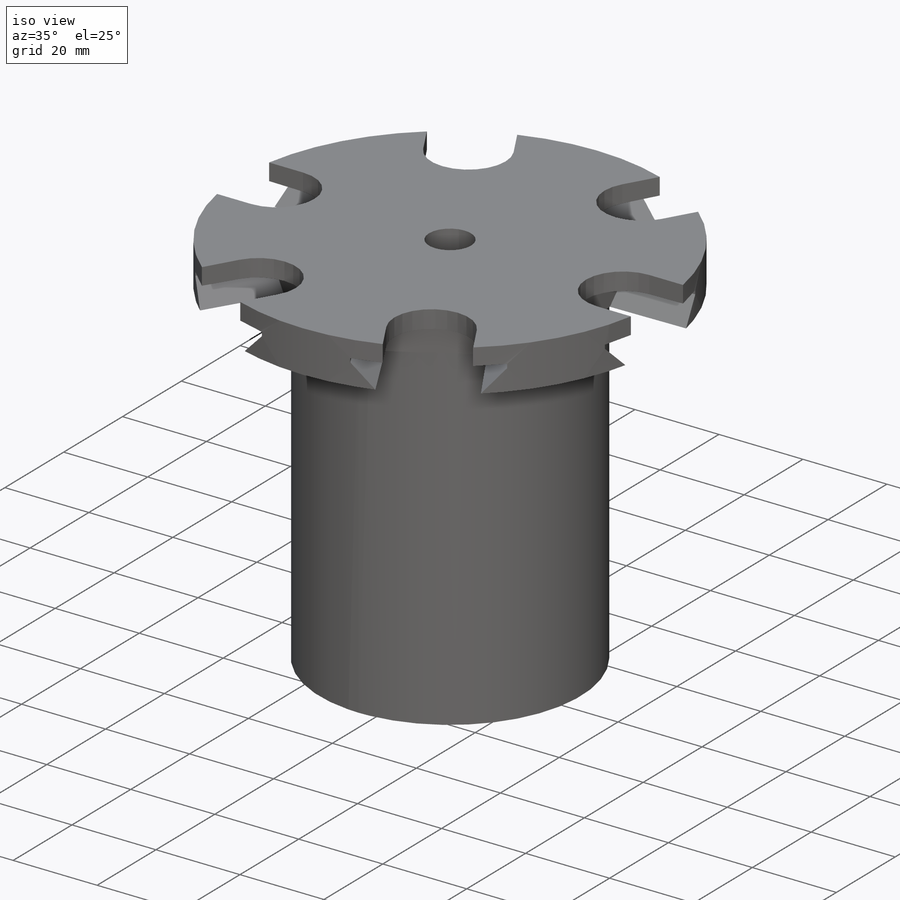
[diagram: iso view]
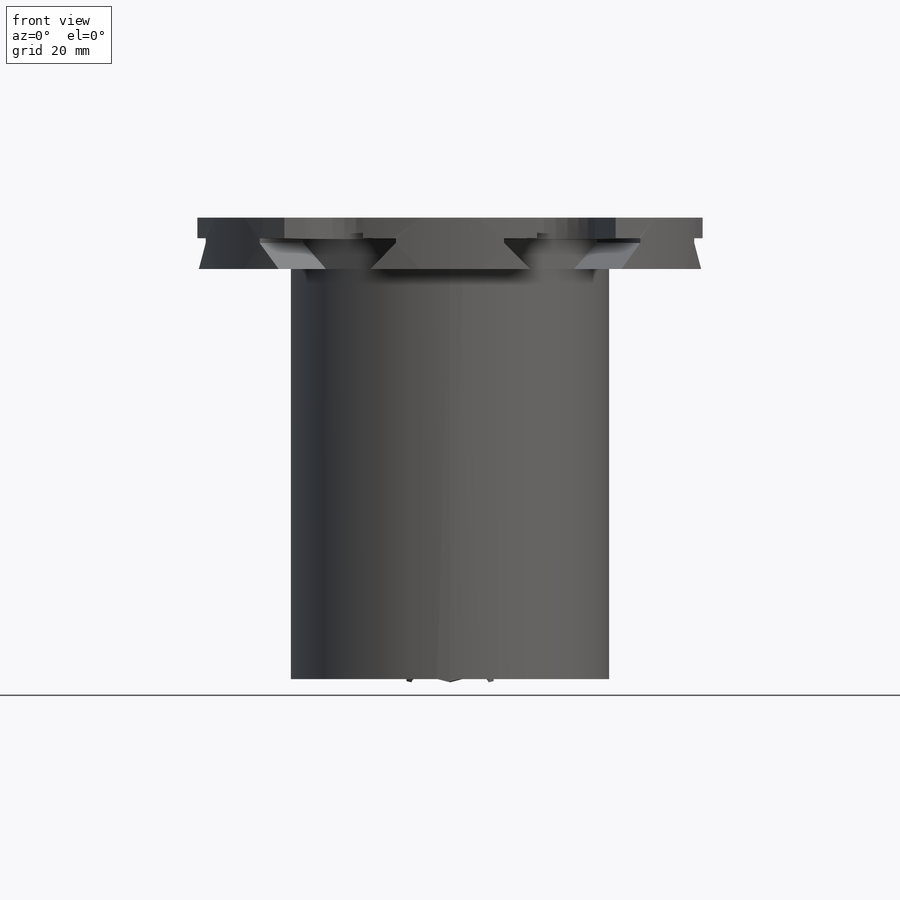
[diagram: front view]
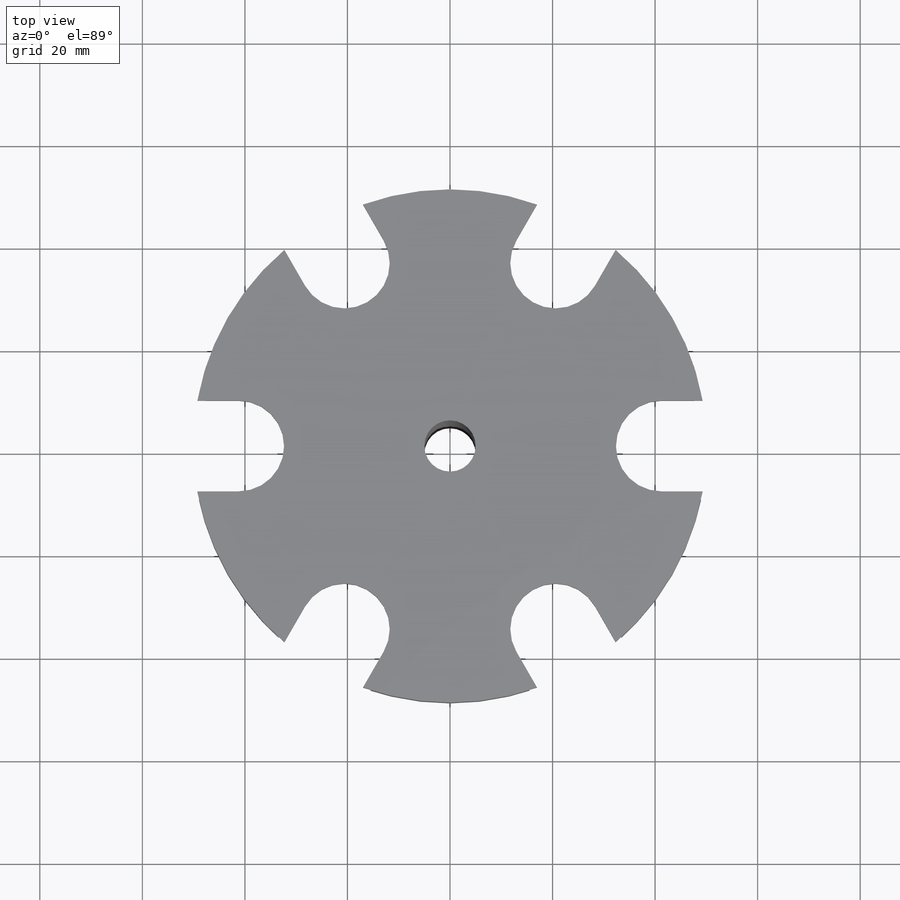
[diagram: top view]
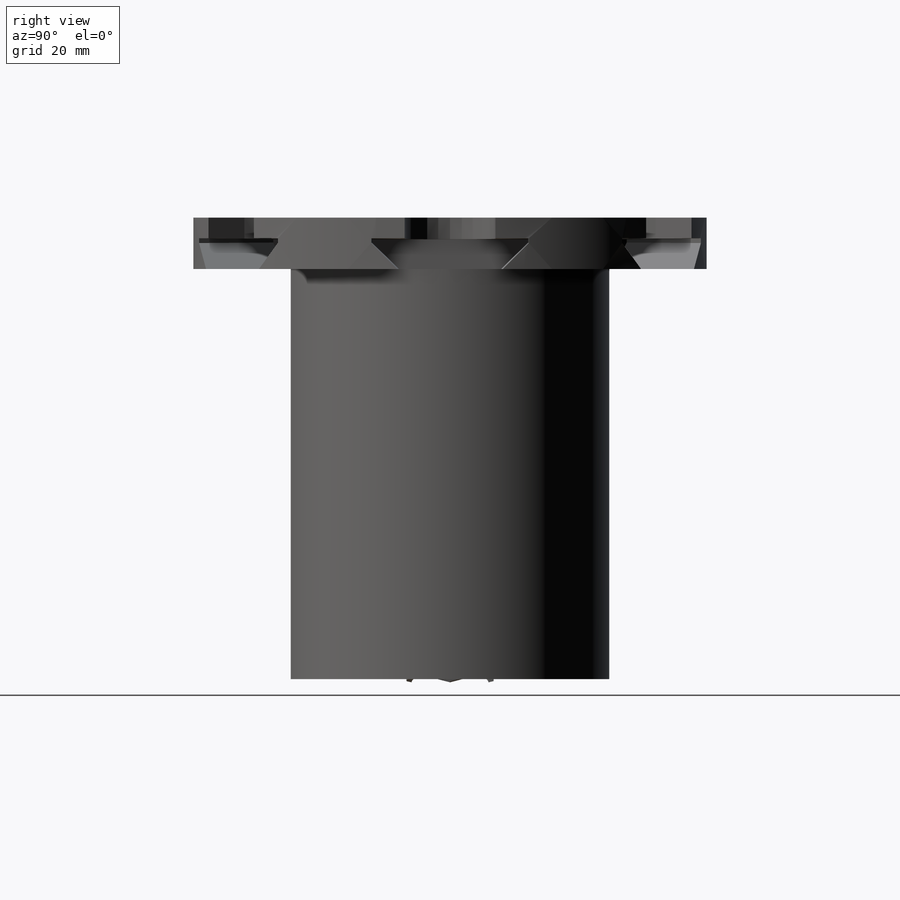
[diagram: right view]
SOLIDWORKS PART (.sldprt)
format: sldprt  version: not decoded by parser v0  size: 484,352 bytes
history: native  units: mm
features: sketch x11, cut_extrude x5, pattern_circular x3, extrude x2, plane x2, material x1, helix x1, sweep x1, cut_revolve x1 (+12 scaffold rows collapsed)
feature tree (39):
  scaffold x12  (default folders/planes/origin — collapsed)
  material  "Material <not specified>"
  sketch  "Sketch1"  dims[D1=62.12mm D2=10.0mm]
  extrude  "Boss-Extrude1"  Depth=90mm
  sketch  "Sketch2"  dims[D1=19.0mm]
  extrude  "Boss-Extrude2"  Depth=10mm
  sketch  "Sketch3"  dims[c1.D1=17.7mm c1.D2=35.0mm c1.D3=48.56mm c2.D2=17.7mm c2.D3=8.85mm]
  cut_extrude  "Cut-Extrude1"  Depth=10mm
  pattern_circular  "CirPattern1"  Count=63 Angle=60deg
  plane  "Plane2"
  plane  "Plane3"
  sketch  "Sketch26"  dims[c1.D1=~6.911576mm c1.D3=3.0mm c1.D5=5.0mm c2.D1=0.8mm c2.D2=0.8mm c2.D3=15.4mm c2.D4=15.4mm]
  sketch  "Sketch27"  dims[c1.D1=~6.532406mm c2.D1=45.0deg c2.D2=~6.532406mm c3.D2=45.0deg c3.D3=17.7mm c3.D4=0.5mm c3.D1=~23.438126mm c4.D2=~6.531732mm c5.D2=45.0deg c5.D3=~14.439602mm c6.D3=~45.154319deg c6.D4=0.95mm c6.D5=1.6mm c6.D6=~0.358853mm c6.D1=~30.762118mm c6.D2=~30.762118mm c7.D2=45.0deg c7.D3=~30.762118mm c8.D3=45.0deg c8.D5=4.0mm c8.D6=0.95mm c9.D3=0.5mm c9.D1=15.0mm]
  cut_extrude  "Cut-Extrude14"  Depth=18.2mm
  pattern_circular  "CirPattern10"  Count=6 Angle=360deg
  sketch  "Sketch18"  dims[c1.D1=~56.930665mm c1.D2=~19.717119mm c2.D1=2.4mm c2.D2=2.5mm]
  cut_extrude  "Cut-Extrude12"  Depth=72mm
  sketch  "Sketch19"
  helix  "Helix/Spiral1"  Pitch=12mm
  sketch  "Sketch20"  dims[c1.D1=1.0mm c1.D2=1.0mm c2.D2=~111.337071deg c3.D2=~1.797078mm c4.D2=60.0deg c4.D3=~0.972638mm c5.D3=120.0deg c6.D3=~0.878422mm c7.D3=30.0deg c7.D2=~0.874433mm c8.D2=29.0deg c8.D3=1.0mm]
  sweep  "Sweep2"
  pattern_circular  "CirPattern8"  Count=4 Angle=360deg
  sketch  "Sketch24"  dims[c1.D1=~6.222135mm c2.D1=45.0deg c2.D2=~10.757958mm]
  cut_revolve  "Cut-Revolve1"  Angle=360deg
  sketch  "Sketch28"  dims[D1=~82.959498mm]
  cut_extrude  "Cut-Extrude15"  Depth=133mm
  sketch  "Sketch29"  dims[D1=50.06mm]
  cut_extrude  "Cut-Extrude17"  Depth=133mm
decode coverage: 22 of 24 modeling features carry decoded parameters
note: ~ marks probable driven/reference dimensions
note: suppression state not decoded; provenance and decode notes live in map.json
